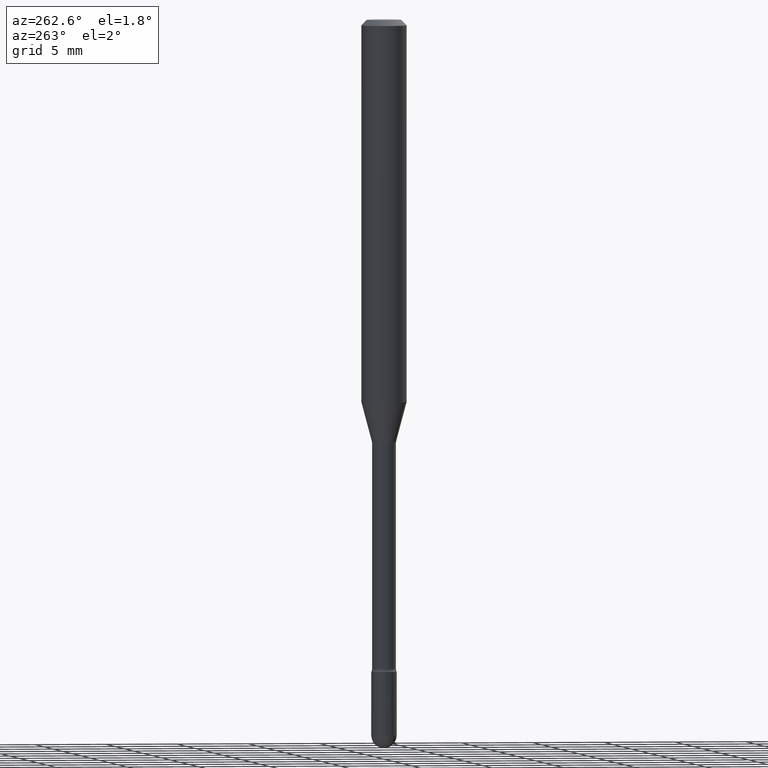
[diagram: clean part render]
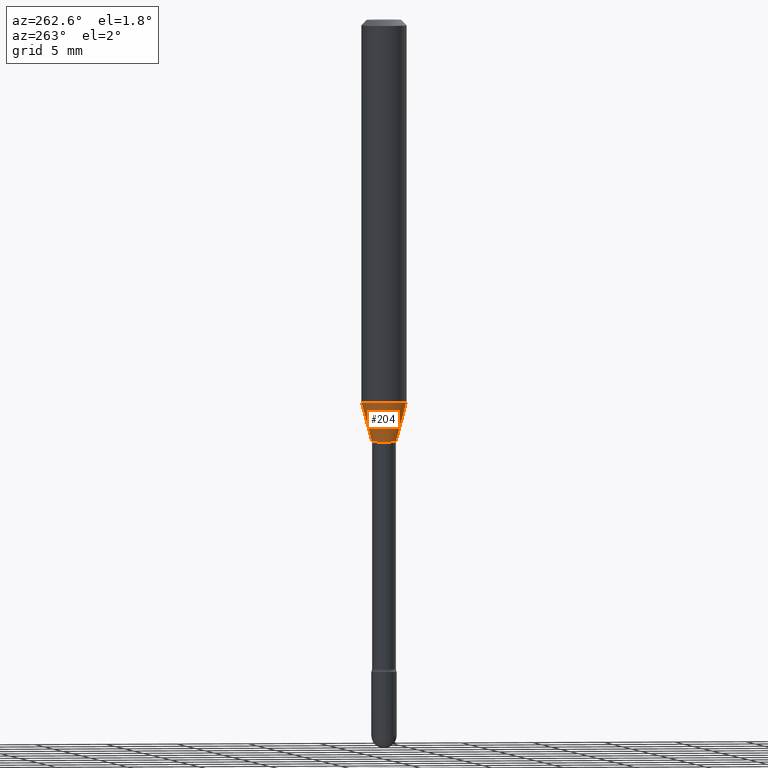
[diagram: same view with one face highlighted and labeled with its STEP entity id]
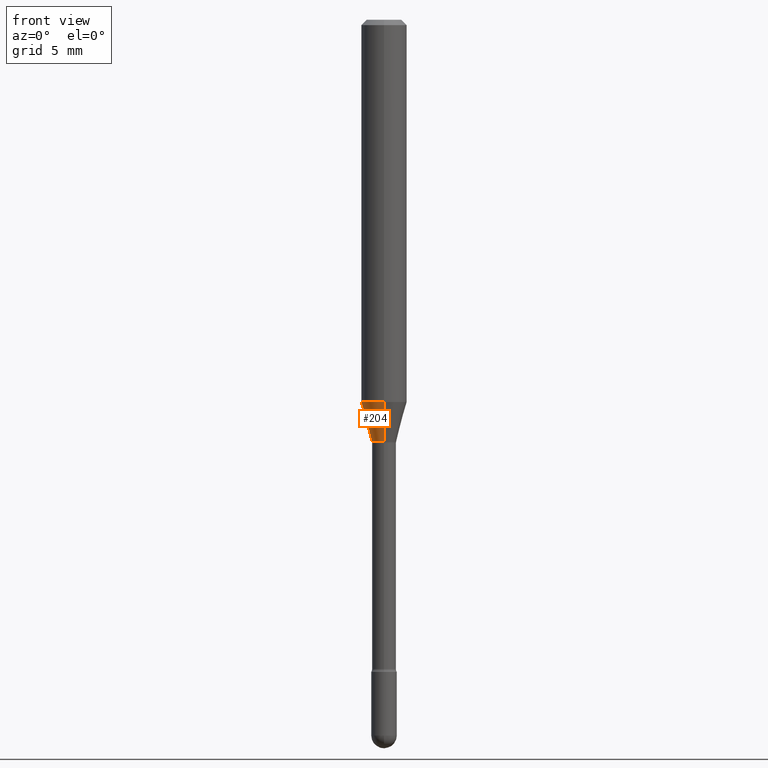
[diagram: same view with one face highlighted and labeled with its STEP entity id]
A machine part, auxiliary view. The second image highlights one B-rep face of the part: STEP entity #204.
A second angle (front view) of the same face is appended — the face is thin or edge-on in the first view.
In plain terms, the highlighted conical surface has half-angle 15 deg.
Its self-contained STEP definition (entity closure, byte-faithful):
#5 = VECTOR ( 'NONE', #33, 39.37007874015748854 ) ;
#18 = ORIENTED_EDGE ( 'NONE', *, *, #82, .T. ) ;
#30 = DIRECTION ( 'NONE',  ( -2.445497683573463397E-29, 3.491439984779462686E-15, 1.000000000000000000 ) ) ;
#33 = DIRECTION ( 'NONE',  ( 1.839019923739594793E-15, 0.2588190451025241812, 0.9659258262890673130 ) ) ;
#35 = FACE_OUTER_BOUND ( 'NONE', #177, .T. ) ;
#76 = CARTESIAN_POINT ( 'NONE',  ( 2.374002335562008662E-16, 0.03341111260565993862, -1.158092501787273187 ) ) ;
#77 = CARTESIAN_POINT ( 'NONE',  ( 2.566626353440528363E-29, -3.664375532466852274E-15, -1.049531296095961297 ) ) ;
#82 = EDGE_CURVE ( 'NONE', #362, #495, #152, .T. ) ;
#108 = DIRECTION ( 'NONE',  ( -1.807323732225324617E-15, -0.2588190451025174088, 0.9659258262890690894 ) ) ;
#116 = DIRECTION ( 'NONE',  ( -2.445497683573463397E-29, 3.491439984779462686E-15, 1.000000000000000000 ) ) ;
#122 = VECTOR ( 'NONE', #108, 39.37007874015748854 ) ;
#134 = ORIENTED_EDGE ( 'NONE', *, *, #395, .T. ) ;
#152 = LINE ( 'NONE', #192, #122 ) ;
#155 = CARTESIAN_POINT ( 'NONE',  ( 2.832112530484573364E-29, -4.043410466813366277E-15, -1.158092501787272965 ) ) ;
#156 = AXIS2_PLACEMENT_3D ( 'NONE', #155, #338, #559 ) ;
#169 = CARTESIAN_POINT ( 'NONE',  ( -2.333085523452963922E-16, -0.03341111260566802243, -1.158092501787272965 ) ) ;
#173 = VERTEX_POINT ( 'NONE', #470 ) ;
#175 = CARTESIAN_POINT ( 'NONE',  ( -4.364351673553658835E-16, -0.06250000000000366374, -1.049531296095960853 ) ) ;
#177 = EDGE_LOOP ( 'NONE', ( #366, #134, #18, #441 ) ) ;
#192 = CARTESIAN_POINT ( 'NONE',  ( -2.333085523452963922E-16, -0.03341111260566802243, -1.158092501787272965 ) ) ;
#202 = CIRCLE ( 'NONE', #156, 0.03341111260566398400 ) ;
#204 = ADVANCED_FACE ( 'NONE', ( #35 ), #563, .T. ) ;
#237 = EDGE_CURVE ( 'NONE', #332, #173, #474, .T. ) ;
#246 = CARTESIAN_POINT ( 'NONE',  ( 2.832112530484573364E-29, -4.043410466813366277E-15, -1.158092501787272965 ) ) ;
#253 = EDGE_CURVE ( 'NONE', #173, #495, #336, .T. ) ;
#262 = AXIS2_PLACEMENT_3D ( 'NONE', #246, #116, #293 ) ;
#293 = DIRECTION ( 'NONE',  ( -6.982962677686266711E-15, -1.000000000000000000, 4.088232597799137334E-15 ) ) ;
#332 = VERTEX_POINT ( 'NONE', #364 ) ;
#336 = CIRCLE ( 'NONE', #343, 0.06250000000000000000 ) ;
#338 = DIRECTION ( 'NONE',  ( -2.445497683573463397E-29, 3.491439984779462686E-15, 1.000000000000000000 ) ) ;
#343 = AXIS2_PLACEMENT_3D ( 'NONE', #77, #30, #391 ) ;
#362 = VERTEX_POINT ( 'NONE', #169 ) ;
#364 = CARTESIAN_POINT ( 'NONE',  ( 3.407447217031446095E-16, 0.03341111260565993862, -1.158092501787273187 ) ) ;
#366 = ORIENTED_EDGE ( 'NONE', *, *, #237, .F. ) ;
#391 = DIRECTION ( 'NONE',  ( -6.982962677686265922E-15, -1.000000000000000000, 4.370956789862821150E-15 ) ) ;
#395 = EDGE_CURVE ( 'NONE', #332, #362, #202, .T. ) ;
#441 = ORIENTED_EDGE ( 'NONE', *, *, #253, .F. ) ;
#470 = CARTESIAN_POINT ( 'NONE',  ( 4.440892098500882541E-16, 0.06249999999999634320, -1.049531296095961519 ) ) ;
#474 = LINE ( 'NONE', #76, #5 ) ;
#495 = VERTEX_POINT ( 'NONE', #175 ) ;
#559 = DIRECTION ( 'NONE',  ( -6.982962677686266711E-15, -1.000000000000000000, 4.088232597799137334E-15 ) ) ;
#563 = CONICAL_SURFACE ( 'NONE', #262, 0.03341111260566398400, 0.2617993877991495189 ) ;